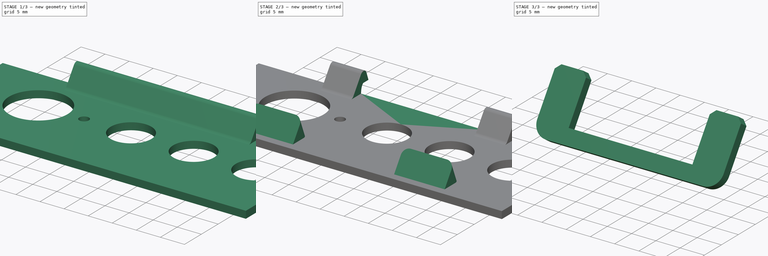
[diagram: build sequence overview — one tinted view per stage of 3, left to right]
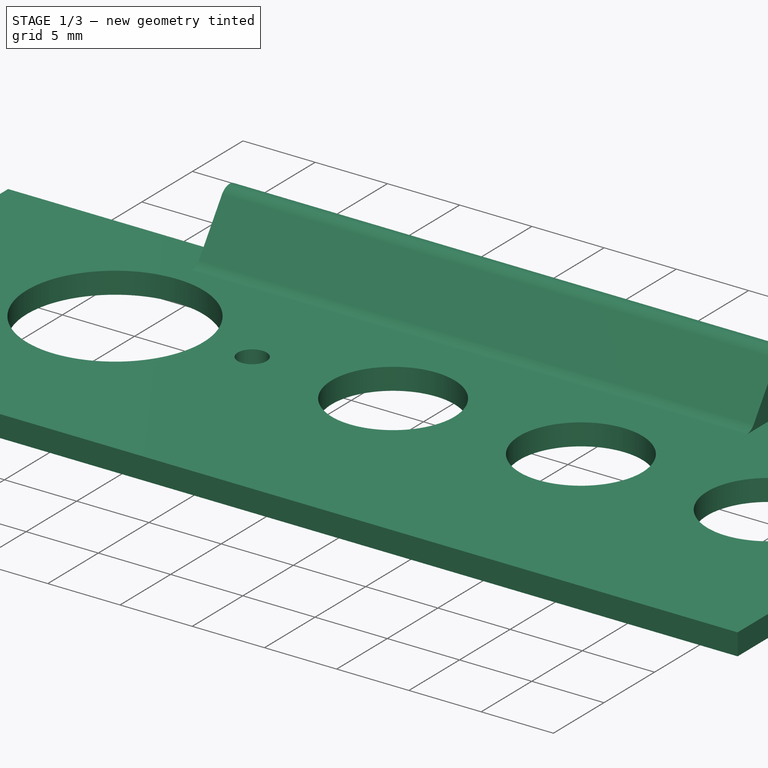
[diagram: stage 1 of 3 — iso view after this stage's code; geometry added in this stage tinted green]
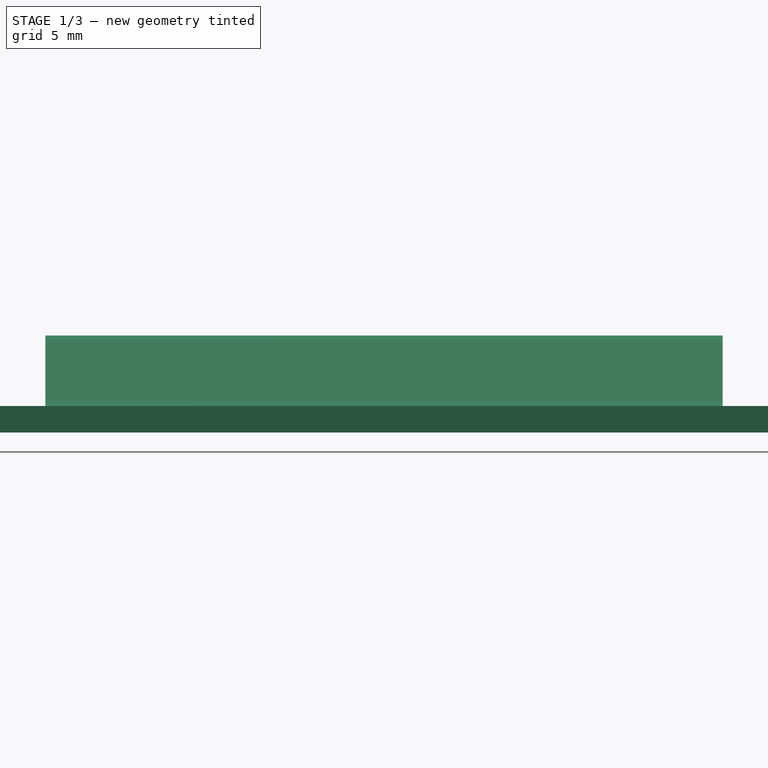
[diagram: stage 1 of 3 — front view after this stage's code; geometry added in this stage tinted green]
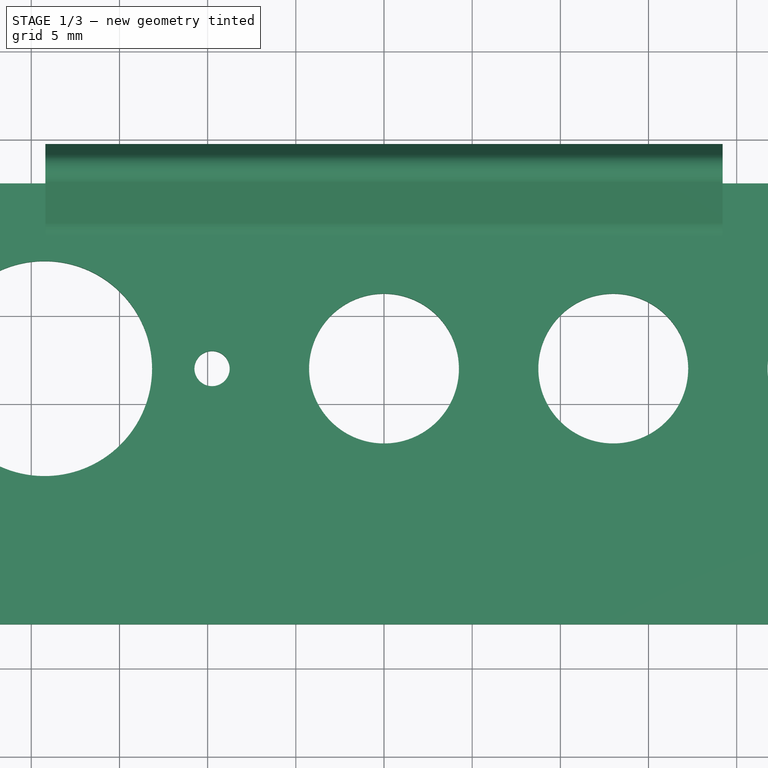
[diagram: stage 1 of 3 — top view after this stage's code; geometry added in this stage tinted green]
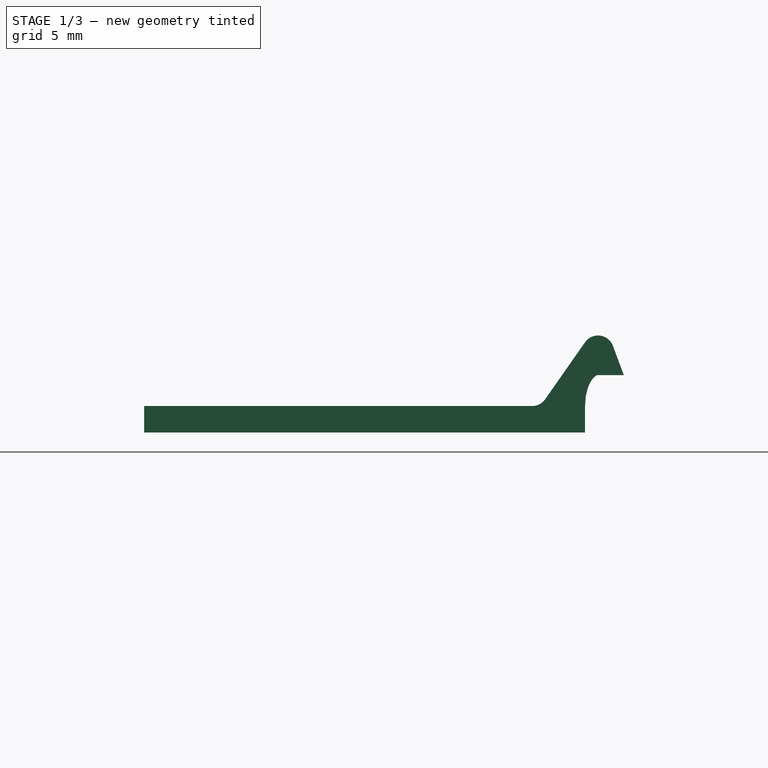
[diagram: stage 1 of 3 — right view after this stage's code; geometry added in this stage tinted green]
FCSTD DOCUMENT  (FreeCAD 1.0R39109 (Git))
Label: ATARI 5200 Expansion port AV cover
License: Creative Commons Attribution 4.0
LicenseURL: https://creativecommons.org/licenses/by/4.0/
objects: Sketcher::SketchObject×9, PartDesign::Pad×5, PartDesign::Pocket×3, PartDesign::Body×3, PartDesign::Line×3, PartDesign::Plane×2, PartDesign::Point×2, PartDesign::SubShapeBinder×1
note: 53 computed .brp shape members not serialized (recipe doc carries the construction recipe); baked Part::Feature solids carry a one-line shape summary decoded from their .brp

FEATURE [Sketcher::SketchObject] Sketch
  ArcFitTolerance = 1e-06
  AttachmentSupport = -> [XY_Plane]
  FullyConstrained = true
  MakeInternals = false
  MapMode = 5
  sketch-geometry (5):
    g0: LineSegment StartX=-34 StartY=-12.5 StartZ=0 EndX=34 EndY=-12.5 EndZ=0
    g1: LineSegment StartX=34 StartY=-12.5 StartZ=0 EndX=34 EndY=12.5 EndZ=0
    g2: LineSegment StartX=34 StartY=12.5 StartZ=0 EndX=-34 EndY=12.5 EndZ=0
    g3: LineSegment StartX=-34 StartY=12.5 StartZ=0 EndX=-34 EndY=-12.5 EndZ=0
    g4: GeomPoint [constr] X=0 Y=0 Z=0
  constraints (12):
    c: Coincident(g0,g1)
    c: Coincident(g1,g2)
    c: Coincident(g2,g3)
    c: Coincident(g3,g0)
    c: Horizontal(g0)
    c: Horizontal(g2)
    c: Vertical(g1)
    c: Vertical(g3)
    c: Symmetric(g2,g0,g4)
    c: Distance(g1,g3) = 68
    c: Distance(g0,g2) = 25
    c: Coincident(g4,g-1)
FEATURE [PartDesign::Pad] Pad
  Direction = (0,0,1)
  Length = 1.5
  Length2 = 10
  Profile = -> Sketch
  ReferenceAxis = -> Sketch [N_Axis]
  Refine = true
  Suppressed = false
  Type = 0
FEATURE [Sketcher::SketchObject] Sketch002
  ArcFitTolerance = 1e-06
  AttachmentSupport = -> [Pad]
  FullyConstrained = false
  MakeInternals = false
  MapMode = 5
  Placement = pos=(0,0,1.5) rot=(0,0,1;0rad)
  sketch-geometry (8):
    g0: Circle CenterX=-28.75 CenterY=2 CenterZ=0 NormalX=0 NormalY=0 NormalZ=1 AngleXU=0 Radius=1
    g1: Circle CenterX=-19.25 CenterY=2 CenterZ=0 NormalX=0 NormalY=0 NormalZ=1 AngleXU=0 Radius=6.1
    g2: Circle CenterX=-9.75 CenterY=2 CenterZ=0 NormalX=0 NormalY=0 NormalZ=1 AngleXU=0 Radius=1
    g3: Circle CenterX=0 CenterY=2 CenterZ=0 NormalX=0 NormalY=0 NormalZ=1 AngleXU=0 Radius=4.25
    g4: Circle CenterX=13 CenterY=2 CenterZ=0 NormalX=0 NormalY=0 NormalZ=1 AngleXU=0 Radius=4.25
    g5: Circle CenterX=26 CenterY=2 CenterZ=0 NormalX=0 NormalY=0 NormalZ=1 AngleXU=0 Radius=4.25
    g6: GeomPoint [constr] X=-31 Y=0 Z=0
    g7: GeomPoint [constr] X=31 Y=0 Z=0
  constraints (18):
    c: Equal(g3,g4)
    c: Equal(g4,g5)
    c: Diameter(g1) = 12.2
    c: Symmetric(g0,g2,g1)
    c: DistanceX(g0,g2) = 19
    c: Equal(g0,g2)
    c: Diameter(g0) = 2
    c: Diameter(g3) = 8.5
    c: Symmetric(g3,g5,g4)
    c: DistanceX(g3,g4) = 13
    c: DistanceX(g6,g7) = 62
    c: Symmetric(g6,g7,g-1)
    c: Horizontal(g1,g3)
    c: Horizontal(g3,g4)
    c: DistanceX(g1,g3) = 19.25
    c: Horizontal(g0,g1)
    c: DistanceX(g3,g-1) = 0
    c: DistanceY(g-1,g3) = 2
FEATURE [PartDesign::Pocket] Pocket
  BaseFeature = -> Pad
  Direction = (0,0,-1)
  Length = 5
  Length2 = 5
  Profile = -> Sketch002
  ReferenceAxis = -> Sketch002 [N_Axis]
  Suppressed = false
  Type = 1
FEATURE [Sketcher::SketchObject] Sketch003
  ArcFitTolerance = 1e-06
  AttachmentSupport = -> [YZ_Plane]
  ExternalGeometry = -> [Pocket]
  FullyConstrained = false
  MakeInternals = false
  MapMode = 5
  Placement = pos=(0,0,0) rot=(0.57735,0.57735,0.57735;2.0944rad)
  sketch-geometry (14):
    g0: ArcOfCircle CenterX=13.2373 CenterY=4.6 CenterZ=0 NormalX=0 NormalY=0 NormalZ=1 AngleXU=0 Radius=0.9 StartAngle=0.356269 EndAngle=2.53084
    g1: LineSegment StartX=14.0808 StartY=4.9139 StartZ=0 EndX=14.7 EndY=3.25 EndZ=0
    g2: LineSegment StartX=14.7 StartY=3.25 StartZ=0 EndX=13.2 EndY=3.25 EndZ=0
    g3: GeomPoint [constr] X=13.2373 Y=5.5 Z=0
    g4: GeomPoint [constr] X=12.5 Y=1.5 Z=0
    g5: GeomPoint [constr] X=13.2 Y=3.25 Z=0
    g6: BSplineCurve PolesCount=4 KnotsCount=2 Degree=3 IsPeriodic=0
    g7-g10: Circle [constr] x4 (B-spline internal-alignment scaffolding for g6; pole/knot coordinates omitted)
    g11: LineSegment StartX=12.5 StartY=5.11613 StartZ=0 EndX=10.2373 EndY=1.88387 EndZ=0
    g12: ArcOfCircle CenterX=9.5 CenterY=2.4 CenterZ=0 NormalX=0 NormalY=0 NormalZ=1 AngleXU=0 Radius=0.9 StartAngle=4.71239 EndAngle=5.67244
    g13: LineSegment StartX=9.5 StartY=1.5 StartZ=0 EndX=12.5 EndY=1.5 EndZ=0
  constraints (32):
    c: Coincident(g1,g2)
    c: Horizontal(g2)
    c: Tangent(g0,g1) = 1.5708
    c: PointOnObject(g3,g0)
    c: Vertical(g3,g0)
    c: DistanceY(g-3,g3) = 4
    c: DistanceX(g2,g2) = 1.5
    c: Radius(g0) = 0.9
    c: DistanceX(g-3,g2) = 0.7
    c: DistanceY(g-3,g2) = 1.75
    c: InternalAlignment(g4,g6)
    c: InternalAlignment(g5,g6)
    c: InternalAlignment(g7,g6)
    c: Weight(g7) = 1
    c: InternalAlignment(g8,g6)
    c: Equal(g8,g7)
    c: InternalAlignment(g9,g6)
    c: Equal(g9,g7)
    c: InternalAlignment(g10,g6)
    c: Equal(g10,g7)
    c: Coincident(g4,g-3)
    c: Coincident(g5,g2)
    c: Vertical(g8,g6)
    c: DistanceY(g8,g6) = 0.5
    c: Horizontal(g6,g12)
    c: Tangent(g12,g11) = 1.5708
    c: Tangent(g11,g0) = -1.5708
    c: DistanceX(g12,g6) = 3
    c: Tangent(g13,g12) = -1.5708
    c: Coincident(g13,g6)
    c: Equal(g0,g12)
    c: Vertical(g0,g4)
FEATURE [PartDesign::Pad] Pad001
  BaseFeature = -> Pocket
  Direction = (1,0,0)
  Length = 38.4
  Length2 = 10
  Midplane = true
  Profile = -> Sketch003
  ReferenceAxis = -> Sketch003 [N_Axis]
  Suppressed = false
  Type = 0
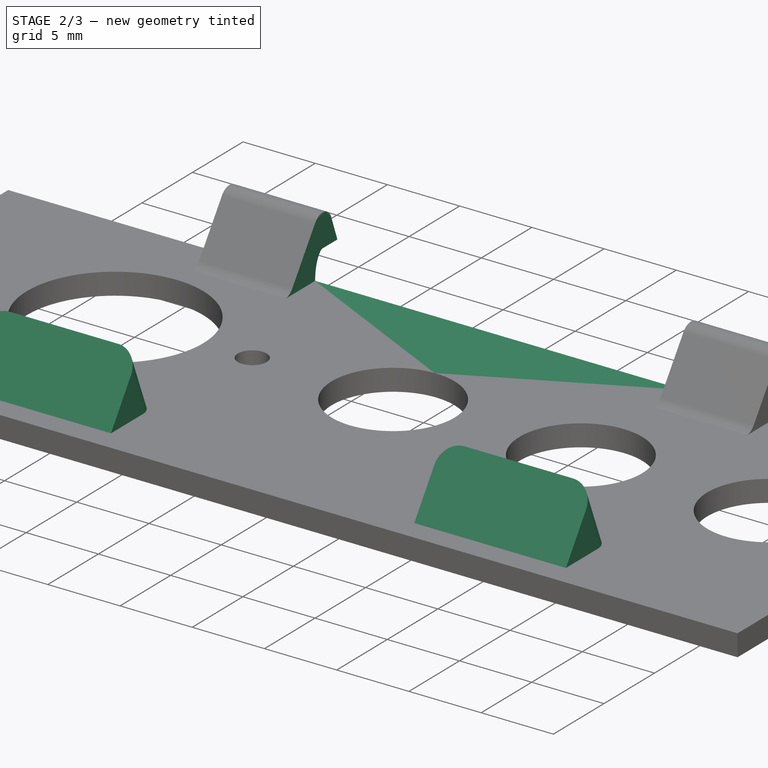
[diagram: stage 2 of 3 — iso view after this stage's code; geometry added in this stage tinted green]
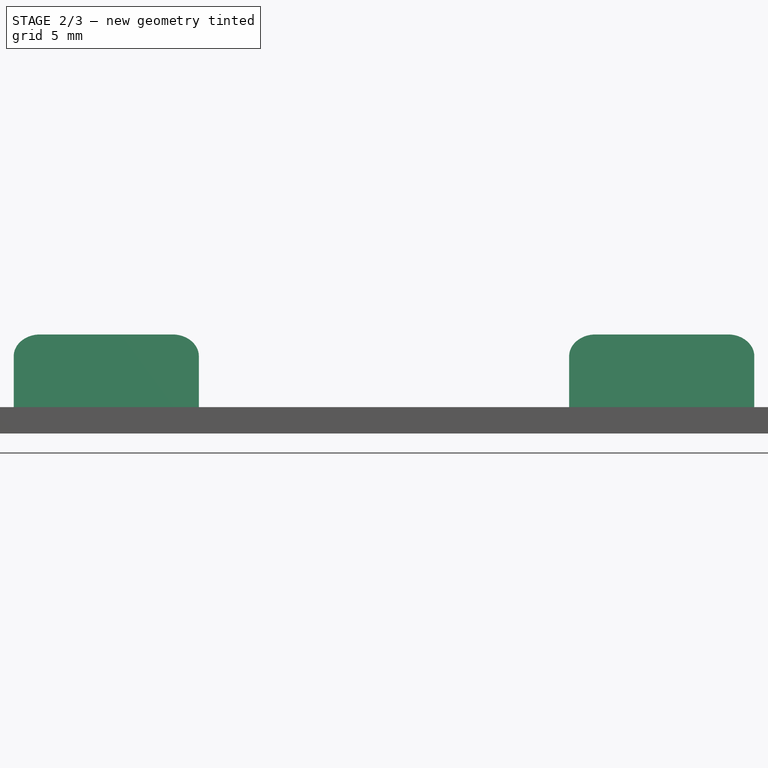
[diagram: stage 2 of 3 — front view after this stage's code; geometry added in this stage tinted green]
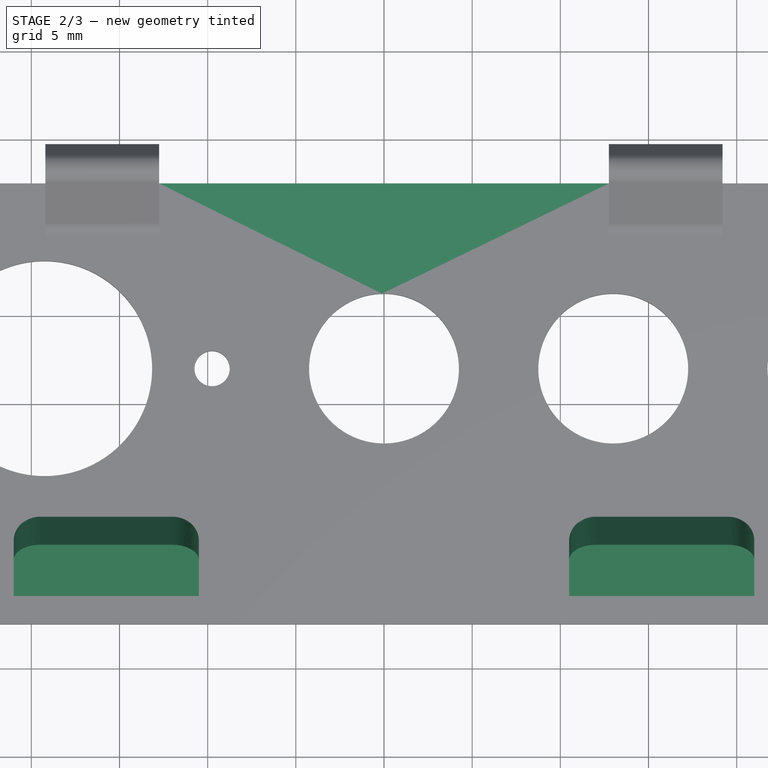
[diagram: stage 2 of 3 — top view after this stage's code; geometry added in this stage tinted green]
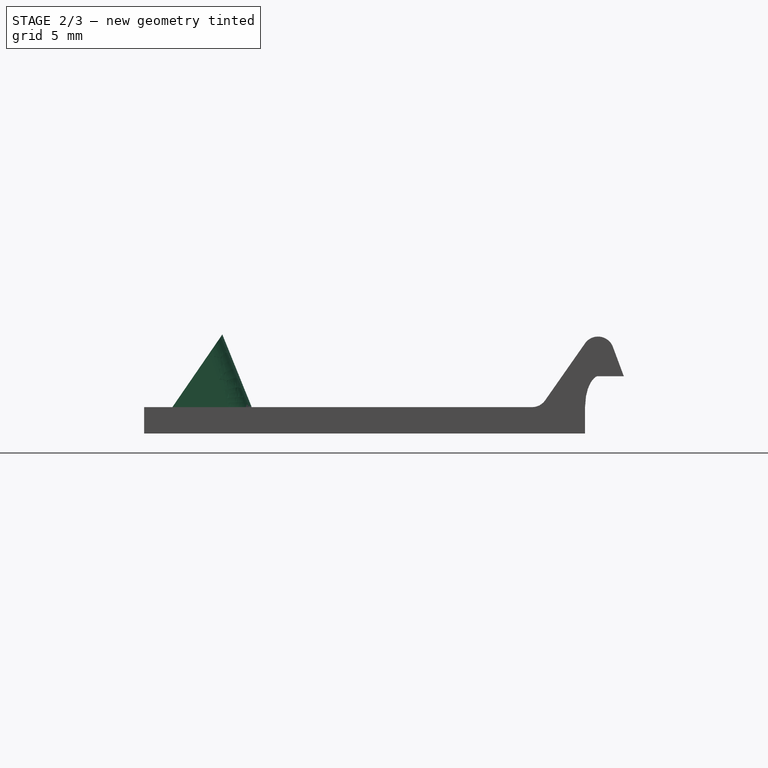
[diagram: stage 2 of 3 — right view after this stage's code; geometry added in this stage tinted green]
FEATURE [Sketcher::SketchObject] Sketch004
  ArcFitTolerance = 1e-06
  AttachmentSupport = -> [YZ_Plane]
  ExternalGeometry = -> [Pad001]
  FullyConstrained = true
  MakeInternals = false
  MapMode = 5
  Placement = pos=(0,0,0) rot=(0.57735,0.57735,0.57735;2.0944rad)
  sketch-geometry (4):
    g0: LineSegment StartX=-16 StartY=6.5 StartZ=0 EndX=-16 EndY=1.5 EndZ=0
    g1: LineSegment StartX=-16 StartY=1.5 StartZ=0 EndX=16 EndY=1.5 EndZ=0
    g2: LineSegment StartX=16 StartY=1.5 StartZ=0 EndX=16 EndY=6.5 EndZ=0
    g3: LineSegment StartX=16 StartY=6.5 StartZ=0 EndX=-16 EndY=6.5 EndZ=0
  constraints (11):
    c: Coincident(g0,g1)
    c: Coincident(g1,g2)
    c: Coincident(g2,g3)
    c: Coincident(g3,g0)
    c: Vertical(g0)
    c: Vertical(g2)
    c: Horizontal(g1)
    c: PointOnObject(g-3,g1)
    c: Symmetric(g0,g2,g-2)
    c: DistanceX(g3,g3) = 32
    c: DistanceY(g2,g2) = 5
FEATURE [PartDesign::Pocket] Pocket001
  BaseFeature = -> Pad001
  Direction = (-1,0,0)
  Length = 25.5
  Length2 = 5
  Midplane = true
  Profile = -> Sketch004
  ReferenceAxis = -> Sketch004 [N_Axis]
  Refine = true
  Suppressed = false
  Type = 0
FEATURE [PartDesign::Body] Body001  label="Pins"
  AllowCompound = false
  Group = -> [Binder,DatumPlane,Sketch006,Pad003]
  Origin = -> Origin001
  Tip = -> Pad003
FEATURE [Sketcher::SketchObject] Sketch007
  ArcFitTolerance = 1e-06
  AttachmentSupport = -> [XZ_Plane002]
  FullyConstrained = false
  MakeInternals = false
  MapMode = 5
  Placement = pos=(0,0,0) rot=(1,0,0;1.5708rad)
  sketch-geometry (7):
    g0: LineSegment StartX=0 StartY=53.7576 StartZ=0 EndX=0 EndY=0 EndZ=0
    g1: LineSegment StartX=0 StartY=0 StartZ=0 EndX=36.9466 EndY=0 EndZ=0
    g2: LineSegment StartX=36.9466 StartY=0 StartZ=0 EndX=36.9466 EndY=5.22371 EndZ=0
    g3: LineSegment StartX=36.9466 StartY=5.22371 StartZ=0 EndX=5.22371 EndY=5.22371 EndZ=0
    g4: LineSegment StartX=5.22371 StartY=5.22371 StartZ=0 EndX=5.22371 EndY=53.7576 EndZ=0
    g5: LineSegment StartX=5.22371 StartY=53.7576 StartZ=0 EndX=0 EndY=53.7576 EndZ=0
    g6: LineSegment [constr] StartX=0 StartY=53.7576 StartZ=0 EndX=36.9466 EndY=0 EndZ=0
  constraints (17):
    c: PointOnObject(g0,g-2)
    c: Coincident(g0,g-1)
    c: Coincident(g0,g1)
    c: PointOnObject(g1,g-1)
    c: Coincident(g1,g2)
    c: Vertical(g2)
    c: Coincident(g2,g3)
    c: Horizontal(g3)
    c: Coincident(g3,g4)
    c: Vertical(g4)
    c: Coincident(g4,g5)
    c: Coincident(g5,g0)
    c: Horizontal(g5)
    c: Equal(g5,g2)
    c: Coincident(g6,g0)
    c: Coincident(g6,g1)
    c: Angle(g-1,g6) = 2.17293
FEATURE [PartDesign::Body] Body002  label="Ports"
  AllowCompound = false
  Group = -> [Sketch007]
  Origin = -> Origin002
FEATURE [PartDesign::Line] DatumLine
  AttacherType = Attacher::AttachEngineLine
  AttachmentOffset = pos=(1.6,0,0) rot=(0,0,1;0rad)
  AttachmentSupport = -> [Pad]
  Length = 20
  MapMode = 29
  Placement = pos=(0,-10.9,1.5) rot=(0.57735,0.57735,0.57735;2.0944rad)
  ResizeMode = 0
FEATURE [PartDesign::Line] DatumLine001
  AttacherType = Attacher::AttachEngineLine
  AttachmentOffset = pos=(0,0,0) rot=(-1,0,0;0.968658rad)
  AttachmentSupport = -> [DatumLine,Pad]
  Length = 20
  MapMode = 31
  Placement = pos=(34,-10.9,1.5) rot=(0,0.296542,0.95502;3.14159rad)
  ResizeMode = 0
FEATURE [PartDesign::Point] DatumPoint
  AttacherType = Attacher::AttachEnginePoint
  AttachmentSupport = -> [DatumLine,DatumLine001]
  MapMode = 40
  Placement = pos=(34,-10.9,1.5) rot=(0,0,1;0rad)
FEATURE [PartDesign::Body] Body  label="Plate"
  AllowCompound = false
  Group = -> [Sketch,Pad,Sketch002,Pocket,Sketch003,Pad001,Sketch004,Pocket001,DatumLine,DatumLine001,Sketch008,Pad004,DatumPoint,DatumPoint001,DatumPlane001,DatumLine002,Sketch009,Pad005,Sketch010,Pocket002]
  Origin = -> Origin
  Tip = -> Pocket002
FEATURE [Sketcher::SketchObject] Sketch008
  ArcFitTolerance = 1e-06
  AttachmentSupport = -> [DatumPlane001]
  ExternalGeometry = -> [Pad]
  FullyConstrained = false
  MakeInternals = false
  MapMode = 5
  Placement = pos=(-34,-10.9,1.5) rot=(1,0,0;0.968658rad)
  sketch-geometry (13):
    g0: LineSegment StartX=13 StartY=0 StartZ=0 EndX=13 EndY=3.5 EndZ=0
    g1: ArcOfCircle CenterX=14.5 CenterY=3.5 CenterZ=0 NormalX=0 NormalY=0 NormalZ=1 AngleXU=0 Radius=1.5 StartAngle=1.5708 EndAngle=3.14159
    g2: LineSegment StartX=14.5 StartY=5 StartZ=0 EndX=22 EndY=5 EndZ=0
    g3: ArcOfCircle CenterX=22 CenterY=3.5 CenterZ=0 NormalX=0 NormalY=0 NormalZ=1 AngleXU=0 Radius=1.5 StartAngle=1e-16 EndAngle=1.5708
    g4: LineSegment StartX=23.5 StartY=3.5 StartZ=0 EndX=23.5 EndY=0 EndZ=0
    g5: LineSegment StartX=23.5 StartY=0 StartZ=0 EndX=13 EndY=0 EndZ=0
    g6: LineSegment [constr] StartX=34 StartY=-15.6721 StartZ=0 EndX=34 EndY=22.9707 EndZ=0
    g7: LineSegment StartX=55 StartY=-3.6e-15 StartZ=0 EndX=55 EndY=3.5 EndZ=0
    g8: ArcOfCircle CenterX=53.5 CenterY=3.5 CenterZ=0 NormalX=0 NormalY=0 NormalZ=1 AngleXU=0 Radius=1.5 StartAngle=0 EndAngle=1.5708
    g9: LineSegment StartX=53.5 StartY=5 StartZ=0 EndX=46 EndY=5 EndZ=0
    g10: ArcOfCircle CenterX=46 CenterY=3.5 CenterZ=0 NormalX=0 NormalY=0 NormalZ=1 AngleXU=0 Radius=1.5 StartAngle=1.5708 EndAngle=3.14159
    g11: LineSegment StartX=44.5 StartY=3.5 StartZ=0 EndX=44.5 EndY=-3.6e-15 EndZ=0
    g12: LineSegment StartX=44.5 StartY=-3.6e-15 StartZ=0 EndX=55 EndY=-3.6e-15 EndZ=0
  constraints (23):
    c: PointOnObject(g0,g-1)
    c: Vertical(g0)
    c: Tangent(g0,g1) = 1.5708
    c: Coincident(g1,g2)
    c: Horizontal(g2)
    c: Tangent(g2,g3) = 1.5708
    c: Coincident(g3,g4)
    c: PointOnObject(g4,g-1)
    c: Vertical(g4)
    c: Coincident(g4,g5)
    c: Coincident(g5,g0)
    c: Radius(g1) = 1.5
    c: Horizontal(g0,g3)
    c: Vertical(g1,g1)
    c: DistanceY(g4,g3) = 3.5
    c: Symmetric(g-4,g-3,g6)
    c: Tangent(g7,g8) = -1.5708
    c: Coincident(g8,g9)
    c: Tangent(g9,g10) = -1.5708
    c: Coincident(g10,g11)
    c: Coincident(g11,g12)
    c: Coincident(g12,g7)
    c: Radius(g8) = 1.5
FEATURE [PartDesign::Pad] Pad004
  BaseFeature = -> Pocket001
  Direction = (0,-0.374607,0.927184)
  Length = 1
  Length2 = 10
  Profile = -> Sketch008
  ReferenceAxis = -> DatumLine002
  Refine = true
  Reversed = true
  Suppressed = false
  Type = 3
  UpToFace = -> Pad [Face5]
  UpToShape = -> [Pad]
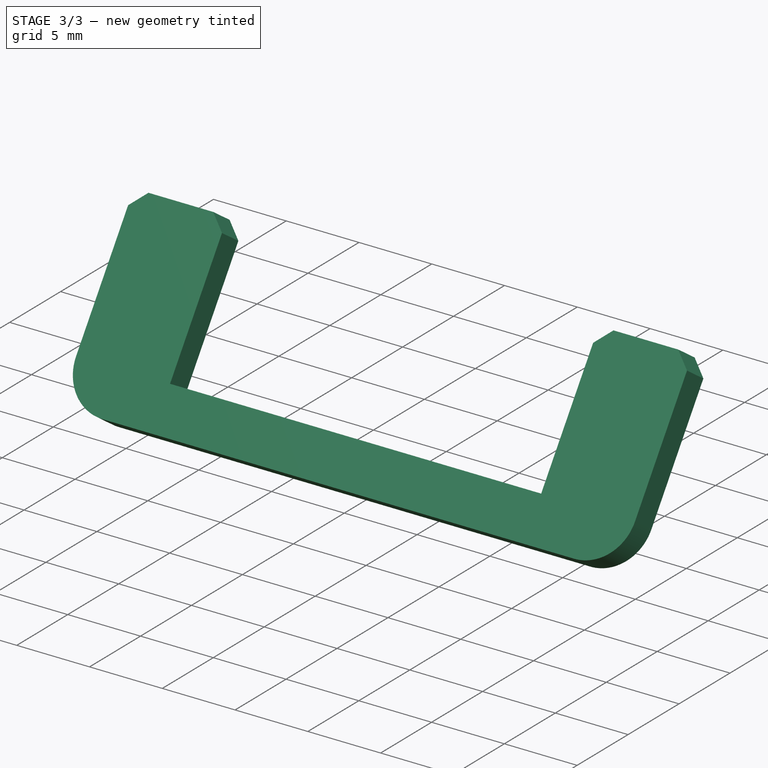
[diagram: stage 3 of 3 — iso view after this stage's code; geometry added in this stage tinted green]
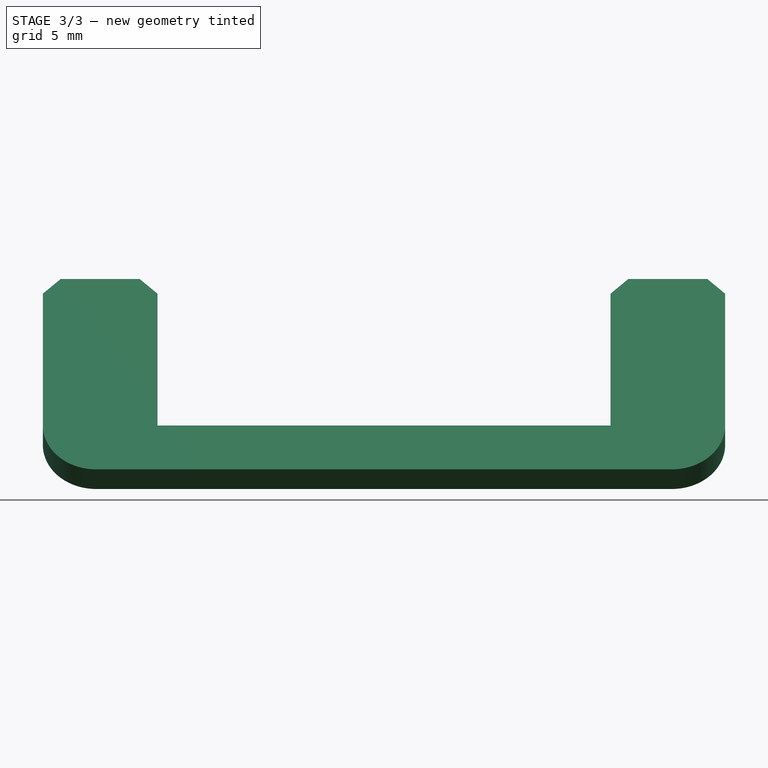
[diagram: stage 3 of 3 — front view after this stage's code; geometry added in this stage tinted green]
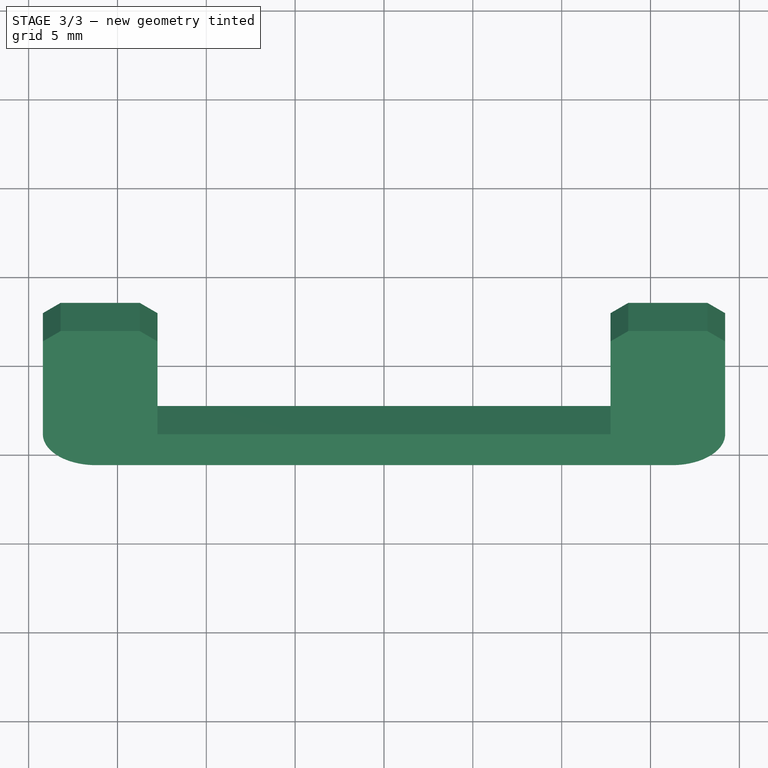
[diagram: stage 3 of 3 — top view after this stage's code; geometry added in this stage tinted green]
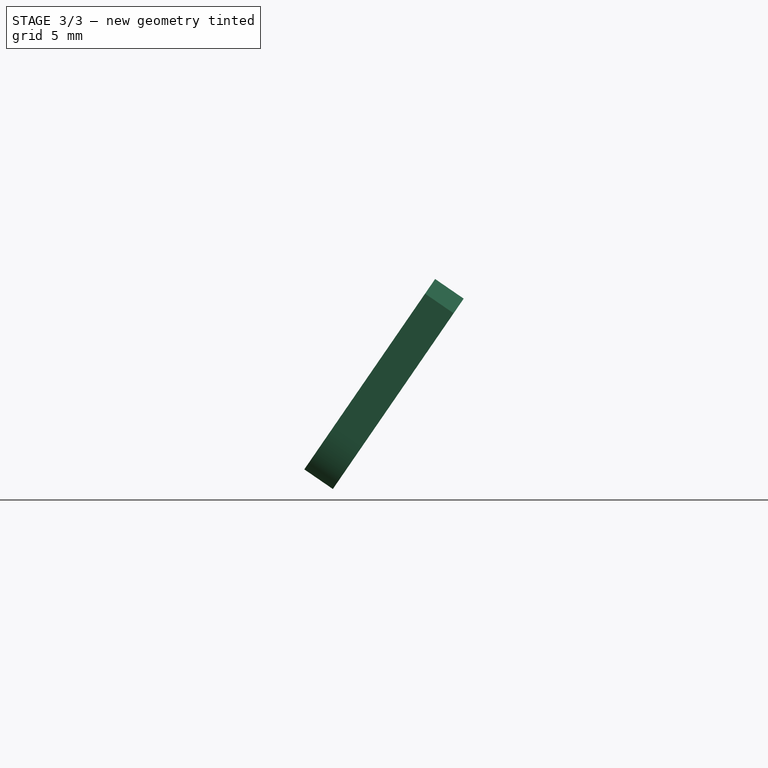
[diagram: stage 3 of 3 — right view after this stage's code; geometry added in this stage tinted green]
FEATURE [PartDesign::SubShapeBinder] Binder
  BindCopyOnChange = 0
  BindMode = 0
  ClaimChildren = false
  Context = -> Body001 [Binder.]
  Fuse = false
  MakeFace = true
  OffsetFill = false
  OffsetIntersection = false
  OffsetJoinType = 0
  OffsetOpenResult = false
  PartialLoad = false
  Relative = true
  Support = -> [Body[Pad002.]]
  _Version = 2
FEATURE [PartDesign::Plane] DatumPlane
  AttachmentSupport = -> [Binder]
  Length = 61.7921
  MapMode = 5
  Placement = pos=(0,-10.3555,7.11711) rot=(1,0,0;0.968658rad)
  ResizeMode = 0
  Width = 81.3187
FEATURE [Sketcher::SketchObject] Sketch006
  ArcFitTolerance = 1e-06
  AttachmentSupport = -> [DatumPlane]
  ExternalGeometry = -> [Binder]
  FullyConstrained = true
  MakeInternals = false
  MapMode = 5
  Placement = pos=(0,-10.3555,7.11711) rot=(1,0,0;0.968658rad)
  sketch-geometry (16):
    g0: GeomPoint [constr] X=12.75 Y=-3.23047 Z=0
    g1: GeomPoint [constr] X=19.2 Y=-6.23047 Z=0
    g2: LineSegment StartX=-12.75 StartY=-3.23047 StartZ=0 EndX=-13.75 EndY=-2.23047 EndZ=0
    g3: LineSegment StartX=-13.75 StartY=-2.23047 StartZ=0 EndX=-18.2 EndY=-2.23047 EndZ=0
    g4: LineSegment StartX=-18.2 StartY=-2.23047 StartZ=0 EndX=-19.2 EndY=-3.23047 EndZ=0
    g5: LineSegment StartX=-19.2 StartY=-3.23047 StartZ=0 EndX=-19.2 EndY=-12.2305 EndZ=0
    g6: ArcOfCircle CenterX=-16.2 CenterY=-12.2305 CenterZ=0 NormalX=0 NormalY=0 NormalZ=1 AngleXU=0 Radius=3 StartAngle=3.14159 EndAngle=4.71238
    g7: LineSegment StartX=-16.2 StartY=-15.2305 StartZ=0 EndX=16.2 EndY=-15.2305 EndZ=0
    g8: ArcOfCircle CenterX=16.2 CenterY=-12.2305 CenterZ=0 NormalX=0 NormalY=0 NormalZ=1 AngleXU=0 Radius=3 StartAngle=4.71239 EndAngle=6.28319
    g9: LineSegment StartX=19.2 StartY=-12.2305 StartZ=0 EndX=19.2 EndY=-3.23047 EndZ=0
    g10: LineSegment StartX=19.2 StartY=-3.23047 StartZ=0 EndX=18.2 EndY=-2.23047 EndZ=0
    g11: LineSegment StartX=18.2 StartY=-2.23047 StartZ=0 EndX=13.75 EndY=-2.23047 EndZ=0
    g12: LineSegment StartX=13.75 StartY=-2.23047 StartZ=0 EndX=12.75 EndY=-3.23047 EndZ=0
    g13: LineSegment StartX=12.75 StartY=-3.23047 StartZ=0 EndX=12.75 EndY=-12.2305 EndZ=0
    g14: LineSegment StartX=12.75 StartY=-12.2305 StartZ=0 EndX=-12.75 EndY=-12.2305 EndZ=0
    g15: LineSegment StartX=-12.75 StartY=-12.2305 StartZ=0 EndX=-12.75 EndY=-3.23047 EndZ=0
  constraints (42):
    c: Symmetric(g-4,g0,g-2)
    c: Symmetric(g-3,g1,g-2)
    c: Coincident(g2,g-4)
    c: Coincident(g2,g3)
    c: Horizontal(g3)
    c: Coincident(g3,g4)
    c: Coincident(g4,g5)
    c: Vertical(g5)
    c: Tangent(g5,g6) = -1.5708
    c: Coincident(g6,g7)
    c: Horizontal(g7)
    c: Tangent(g7,g8) = -1.5708
    c: Coincident(g8,g9)
    c: Vertical(g9)
    c: Coincident(g9,g10)
    c: Coincident(g10,g11)
    c: Horizontal(g11)
    c: Coincident(g11,g12)
    c: Coincident(g12,g0)
    c: Coincident(g12,g13)
    c: Vertical(g13)
    c: Coincident(g13,g14)
    c: Horizontal(g14)
    c: Coincident(g14,g15)
    c: Coincident(g15,g2)
    c: Vertical(g15)
    c: Equal(g6,g8)
    c: Horizontal(g6,g14)
    c: Horizontal(g13,g8)
    c: DistanceY(g14,g-3) = 6
    c: PointOnObject(g-3,g5)
    c: PointOnObject(g1,g9)
    c: Horizontal(g8,g8)
    c: Radius(g6) = 3
    c: Horizontal(g2,g11)
    c: Angle(g11,g10) = 2.35619
    c: DistanceY(g9,g10) = 1
    c: Angle(g12,g11) = 2.35619
    c: Angle(g4,g3) = 2.35619
    c: Angle(g3,g2) = 2.35619
    c: Horizontal(g4,g2)
    c: Horizontal(g0,g9)
FEATURE [PartDesign::Pad] Pad003
  Direction = (0,-0.824126,0.566406)
  Length = 1.95
  Length2 = 10
  Placement = pos=(0,-10.3555,7.11711) rot=(1,0,0;0.968658rad)
  Profile = -> Sketch006
  ReferenceAxis = -> Sketch006 [N_Axis]
  Suppressed = false
  Type = 0
FEATURE [PartDesign::Point] DatumPoint001
  AttacherType = Attacher::AttachEnginePoint
  AttachmentSupport = -> [DatumLine001,Pad004]
  MapMode = 41
  Placement = pos=(-34,-10.9,1.5) rot=(0,0,1;0rad)
FEATURE [PartDesign::Plane] DatumPlane001
  AttachmentSupport = -> [DatumPoint001,DatumPoint,DatumLine001]
  Length = 81.7518
  MapMode = 49
  Placement = pos=(-34,-10.9,1.5) rot=(1,0,0;0.968658rad)
  ResizeMode = 0
  Width = 83.2784
FEATURE [PartDesign::Line] DatumLine002
  AttacherType = Attacher::AttachEngineLine
  AttachmentOffset = pos=(0,0,0) rot=(1,0,0;0.383972rad)
  AttachmentSupport = -> [Pad004]
  Length = 20
  MapMode = 29
  Placement = pos=(34,-12.5,0) rot=(1,0,0;0.383972rad)
  ResizeMode = 0
FEATURE [Sketcher::SketchObject] Sketch009
  ArcFitTolerance = 1e-06
  AttachmentSupport = -> [DatumPlane001]
  ExternalGeometry = -> [Pad004]
  FullyConstrained = false
  MakeInternals = false
  MapMode = 5
  Placement = pos=(-34,-10.9,1.5) rot=(1,0,0;0.968658rad)
  sketch-geometry (10):
    g0: LineSegment StartX=15 StartY=5 StartZ=0 EndX=15 EndY=0 EndZ=0
    g1: LineSegment StartX=15 StartY=0 StartZ=0 EndX=21.5 EndY=0 EndZ=0
    g2: LineSegment StartX=21.5 StartY=0 StartZ=0 EndX=21.5 EndY=5 EndZ=0
    g3: LineSegment StartX=21.5 StartY=5 StartZ=0 EndX=15 EndY=5 EndZ=0
    g4: LineSegment StartX=46.5 StartY=5 StartZ=0 EndX=46.5 EndY=0 EndZ=0
    g5: LineSegment StartX=46.5 StartY=0 StartZ=0 EndX=53 EndY=0 EndZ=0
    g6: LineSegment StartX=53 StartY=0 StartZ=0 EndX=53 EndY=5 EndZ=0
    g7: LineSegment StartX=53 StartY=5 StartZ=0 EndX=46.5 EndY=5 EndZ=0
    g8: LineSegment [constr] StartX=18.25 StartY=-6.05349 StartZ=0 EndX=18.25 EndY=22.8583 EndZ=0
    g9: LineSegment [constr] StartX=49.75 StartY=-6.39075 StartZ=0 EndX=49.75 EndY=22.4085 EndZ=0
  constraints (24):
    c: Coincident(g0,g1)
    c: Coincident(g1,g2)
    c: Coincident(g2,g3)
    c: Coincident(g3,g0)
    c: Vertical(g0)
    c: Vertical(g2)
    c: Horizontal(g3)
    c: Coincident(g4,g5)
    c: Coincident(g5,g6)
    c: Coincident(g6,g7)
    c: Coincident(g7,g4)
    c: Vertical(g4)
    c: Vertical(g6)
    c: Horizontal(g7)
    c: Horizontal(g2,g4)
    c: DistanceX(g3,g3) = 6.5
    c: DistanceY(g0,g0) = 5
    c: PointOnObject(g1,g-1)
    c: Horizontal(g4,g1)
    c: Equal(g3,g7)
    c: Symmetric(g-3,g-3,g8)
    c: Symmetric(g-4,g-4,g9)
    c: Symmetric(g0,g1,g8)
    c: Symmetric(g4,g5,g9)
FEATURE [PartDesign::Pad] Pad005
  BaseFeature = -> Pad004
  Direction = (0,-0.824126,0.566406)
  Length = 4
  Length2 = 10
  Profile = -> Sketch009
  ReferenceAxis = -> Sketch009 [N_Axis]
  Suppressed = false
  Type = 0
FEATURE [Sketcher::SketchObject] Sketch010
  ArcFitTolerance = 1e-06
  AttachmentSupport = -> [Pad005]
  ExternalGeometry = -> [Pad005]
  FullyConstrained = true
  MakeInternals = false
  MapMode = 5
  Placement = pos=(19,0,0) rot=(0.57735,0.57735,0.57735;2.0944rad)
  sketch-geometry (3):
    g0: LineSegment StartX=-14.1965 StartY=3.76562 StartZ=0 EndX=-8.06797 EndY=5.62063 EndZ=0
    g1: LineSegment StartX=-8.06797 StartY=5.62063 StartZ=0 EndX=-11.3645 EndY=7.88626 EndZ=0
    g2: LineSegment StartX=-11.3645 StartY=7.88626 StartZ=0 EndX=-14.1965 EndY=3.76562 EndZ=0
  constraints (6):
    c: Coincident(g0,g-3)
    c: Coincident(g0,g-4)
    c: Coincident(g0,g1)
    c: Coincident(g1,g-4)
    c: Coincident(g1,g2)
    c: Coincident(g2,g0)
FEATURE [PartDesign::Pocket] Pocket002
  BaseFeature = -> Pad005
  Direction = (-1,0,0)
  Length = 5
  Length2 = 5
  Profile = -> Sketch010
  ReferenceAxis = -> Sketch010 [N_Axis]
  Suppressed = false
  Type = 1
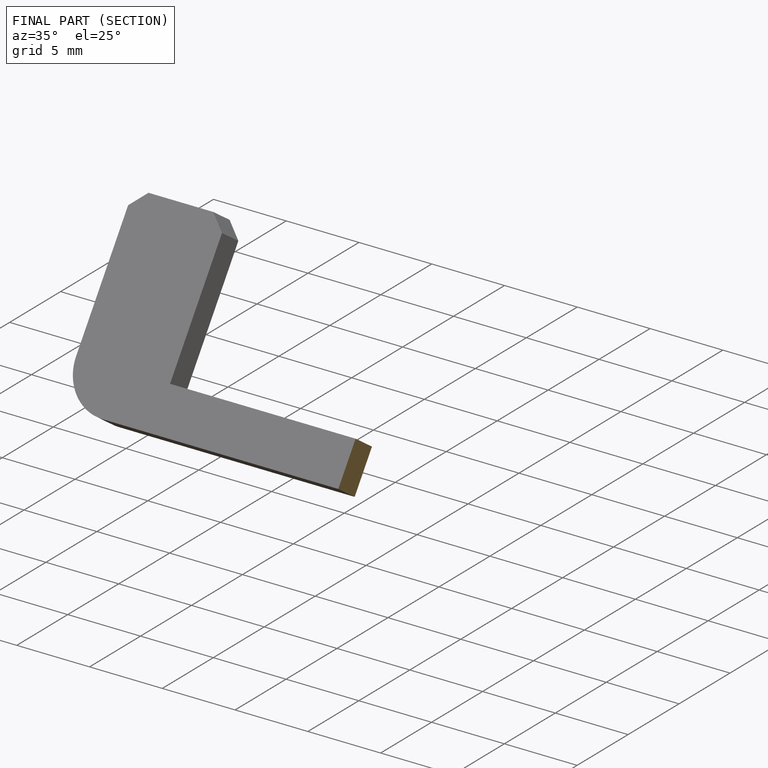
[diagram: finished part — half-section view (interior)]
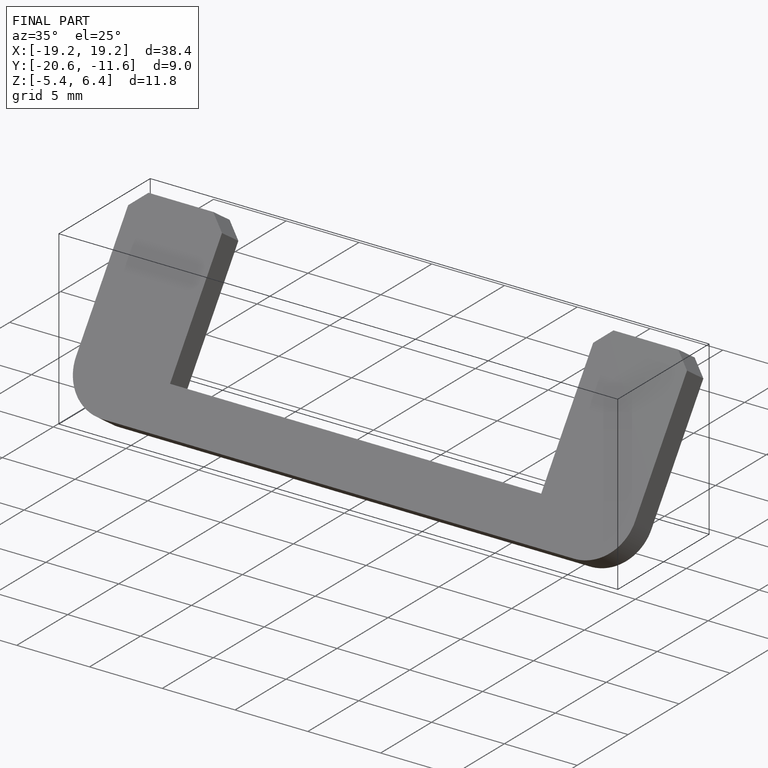
[diagram: finished part — iso view with bounding-box wireframe]
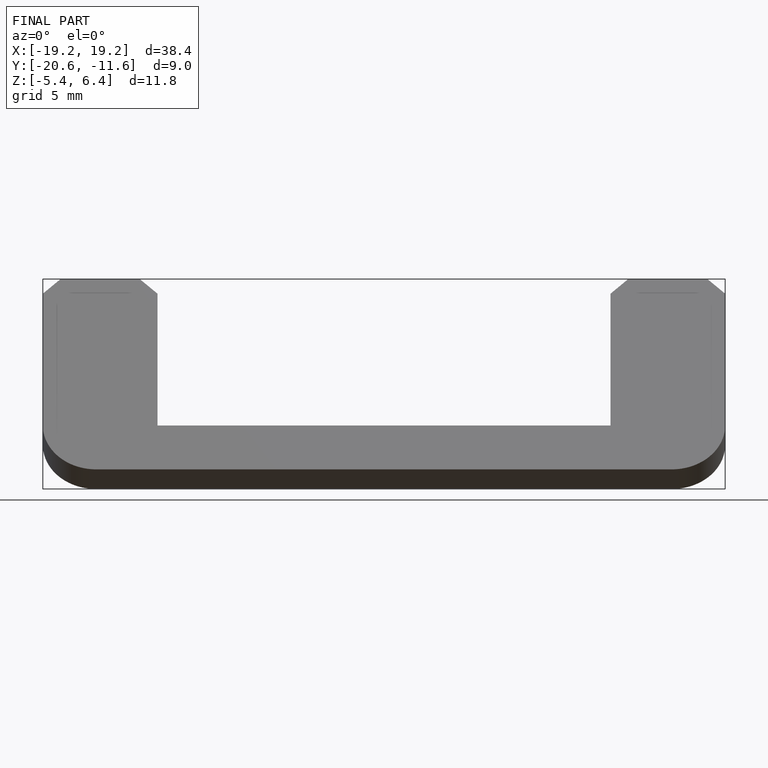
[diagram: finished part — front view with bounding-box wireframe]
